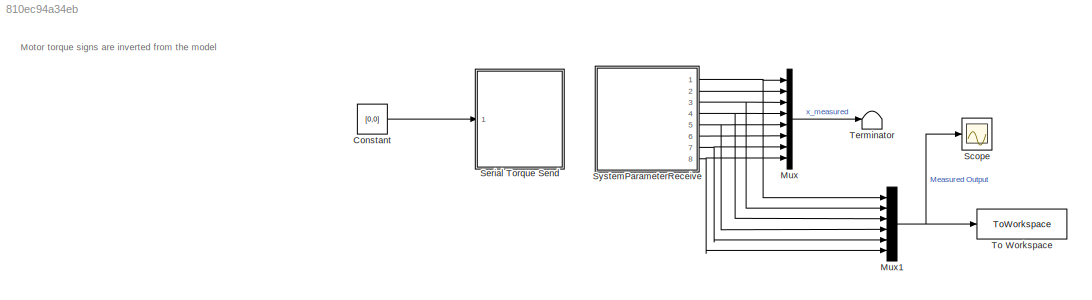
MODEL slx_810ec94a34eb
KIND model
CONFIG AbsTol = auto
CONFIG EnableMultiTasking = off
CONFIG FixedStep = Ts
CONFIG MaxStep = auto
CONFIG MinStep = auto
CONFIG RelTol = 1e-9
CONFIG SampleTimeConstraint = Unconstrained
CONFIG SolverName = FixedStepAuto
CONFIG StartTime = tspan(1)
CONFIG StopTime = tspan(2)
BLOCK [Constant] Constant
  SampleTime = Ts
  Value = [0,0]
BLOCK [Mux] Mux
  DisplayOption = bar
  Inputs = 8
  Ports = [8, 1]
BLOCK [Mux] Mux1
  DisplayOption = bar
  Inputs = 6
  Ports = [6, 1]
BLOCK [Scope] Scope
  Floating = off
  NumInputPorts = 1
  Ports = [1]
  ScopeSpecificationString = Simulink.scopes.TimeScopeBlockCfg('CurrentConfiguration', extmgr.ConfigurationSet(extmgr.Configuration('Core','General UI',true),extmgr.Configuration('Core','Source UI',true),extmgr.Configuration('Sources','WiredSimulink',true),extmgr.Configuration('Visuals','Time Domain',true,'SerializedDisplays',{struct('MinYLimReal','-0.2983','MaxYLimReal','0.05622','YLabelReal','','MinYLimMag','0.00000','MaxYL...<+1519ch>
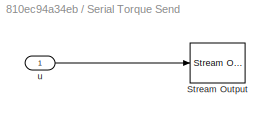
BLOCK [SubSystem] Serial Torque Send
  Ports = [1]
  RequestExecContextInheritance = off
BLOCK [Reference] Serial Torque Send/Stream Output  REF=sldrtlib/Stream Output
  AttributesFormatString = Serial Port [6]
  Ports = [1]
  SourceBlock = sldrtlib/Stream Output
  SourceProductBaseCode = WT
  SourceType = Simulink Desktop Real-Time Stream Output
BLOCK [Inport] Serial Torque Send/u
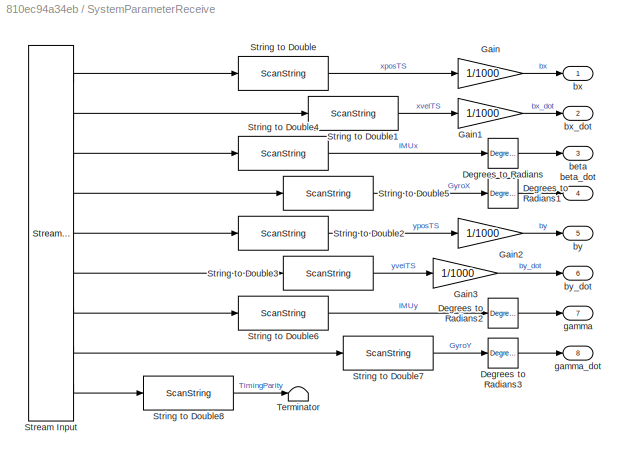
BLOCK [SubSystem] SystemParameterReceive
  Ports = [0, 8]
  RequestExecContextInheritance = off
BLOCK [Reference] SystemParameterReceive/Degrees to Radians  REF=simulink_extras/Transformations/Degrees to
Radians
  Ports = [1, 1]
  SourceBlock = simulink_extras/Transformations/Degrees to\nRadians
  SourceProductBaseCode = SL
  SourceType = DegreesToRadians
BLOCK [Reference] SystemParameterReceive/Degrees to Radians1  REF=simulink_extras/Transformations/Degrees to
Radians
  Ports = [1, 1]
  SourceBlock = simulink_extras/Transformations/Degrees to\nRadians
  SourceProductBaseCode = SL
  SourceType = DegreesToRadians
BLOCK [Reference] SystemParameterReceive/Degrees to Radians2  REF=simulink_extras/Transformations/Degrees to
Radians
  Ports = [1, 1]
  SourceBlock = simulink_extras/Transformations/Degrees to\nRadians
  SourceProductBaseCode = SL
  SourceType = DegreesToRadians
BLOCK [Reference] SystemParameterReceive/Degrees to Radians3  REF=simulink_extras/Transformations/Degrees to
Radians
  Ports = [1, 1]
  SourceBlock = simulink_extras/Transformations/Degrees to\nRadians
  SourceProductBaseCode = SL
  SourceType = DegreesToRadians
BLOCK [Gain] SystemParameterReceive/Gain
  Gain = 1/1000
  OutDataTypeStr = double
BLOCK [Gain] SystemParameterReceive/Gain1
  Gain = 1/1000
  OutDataTypeStr = double
BLOCK [Gain] SystemParameterReceive/Gain2
  Gain = 1/1000
  OutDataTypeStr = double
BLOCK [Gain] SystemParameterReceive/Gain3
  Gain = 1/1000
  OutDataTypeStr = double
BLOCK [Reference] SystemParameterReceive/Stream Input  REF=sldrtlib/Stream Input
  AttributesFormatString = Serial Port [6]
  Ports = [0, 9]
  SourceBlock = sldrtlib/Stream Input
  SourceProductBaseCode = WT
  SourceType = Simulink Desktop Real-Time Stream Input
BLOCK [ScanString] SystemParameterReceive/String to Double
  Format = "%d"
  Ports = [1, 1]
BLOCK [ScanString] SystemParameterReceive/String to Double1
  Format = "%lf"
  Ports = [1, 1]
BLOCK [ScanString] SystemParameterReceive/String to Double2
  Format = "%lf"
  Ports = [1, 1]
BLOCK [ScanString] SystemParameterReceive/String to Double3
  Format = "%lf"
  Ports = [1, 1]
BLOCK [ScanString] SystemParameterReceive/String to Double4
  Format = "%lf"
  Ports = [1, 1]
BLOCK [ScanString] SystemParameterReceive/String to Double5
  Format = "%lf"
  Ports = [1, 1]
BLOCK [ScanString] SystemParameterReceive/String to Double6
  Format = "%lf"
  Ports = [1, 1]
BLOCK [ScanString] SystemParameterReceive/String to Double7
  Format = "%lf"
  Ports = [1, 1]
BLOCK [ScanString] SystemParameterReceive/String to Double8
  Format = "%lf"
  Ports = [1, 1]
BLOCK [Terminator] SystemParameterReceive/Terminator
BLOCK [Outport] SystemParameterReceive/beta
  Port = 3
BLOCK [Outport] SystemParameterReceive/beta_dot
  Port = 4
BLOCK [Outport] SystemParameterReceive/bx
BLOCK [Outport] SystemParameterReceive/bx_dot
  Port = 2
BLOCK [Outport] SystemParameterReceive/by
  Port = 5
BLOCK [Outport] SystemParameterReceive/by_dot
  Port = 6
BLOCK [Outport] SystemParameterReceive/gamma
  Port = 7
BLOCK [Outport] SystemParameterReceive/gamma_dot
  Port = 8
BLOCK [Terminator] Terminator
BLOCK [ToWorkspace] To Workspace
  FixptAsFi = on
  MaxDataPoints = inf
  Ports = [1]
  SampleTime = -1
  VariableName = x_meas
ANNOTATION (root): Motor torque signs are inverted from the model
LINE Constant:1 -> Serial Torque Send:1
NET Mux1:1 -> Scope:1, To Workspace:1
LINE Mux:1 -> Terminator:1
LINE Serial Torque Send/u:1 -> Serial Torque Send/Stream Output:1
LINE SystemParameterReceive/Degrees to Radians1:1 -> SystemParameterReceive/beta_dot:1
LINE SystemParameterReceive/Degrees to Radians2:1 -> SystemParameterReceive/gamma:1
LINE SystemParameterReceive/Degrees to Radians3:1 -> SystemParameterReceive/gamma_dot:1
LINE SystemParameterReceive/Degrees to Radians:1 -> SystemParameterReceive/beta:1
LINE SystemParameterReceive/Gain1:1 -> SystemParameterReceive/bx_dot:1
LINE SystemParameterReceive/Gain2:1 -> SystemParameterReceive/by:1
LINE SystemParameterReceive/Gain3:1 -> SystemParameterReceive/by_dot:1
LINE SystemParameterReceive/Gain:1 -> SystemParameterReceive/bx:1
LINE SystemParameterReceive/Stream Input:1 -> SystemParameterReceive/String to Double:1
LINE SystemParameterReceive/Stream Input:2 -> SystemParameterReceive/String to Double1:1
LINE SystemParameterReceive/Stream Input:3 -> SystemParameterReceive/String to Double4:1
LINE SystemParameterReceive/Stream Input:4 -> SystemParameterReceive/String to Double5:1
LINE SystemParameterReceive/Stream Input:5 -> SystemParameterReceive/String to Double2:1
LINE SystemParameterReceive/Stream Input:6 -> SystemParameterReceive/String to Double3:1
LINE SystemParameterReceive/Stream Input:7 -> SystemParameterReceive/String to Double6:1
LINE SystemParameterReceive/Stream Input:8 -> SystemParameterReceive/String to Double7:1
LINE SystemParameterReceive/Stream Input:9 -> SystemParameterReceive/String to Double8:1
LINE SystemParameterReceive/String to Double1:1 -> SystemParameterReceive/Gain1:1
LINE SystemParameterReceive/String to Double2:1 -> SystemParameterReceive/Gain2:1
LINE SystemParameterReceive/String to Double3:1 -> SystemParameterReceive/Gain3:1
LINE SystemParameterReceive/String to Double4:1 -> SystemParameterReceive/Degrees to Radians:1
LINE SystemParameterReceive/String to Double5:1 -> SystemParameterReceive/Degrees to Radians1:1
LINE SystemParameterReceive/String to Double6:1 -> SystemParameterReceive/Degrees to Radians2:1
LINE SystemParameterReceive/String to Double7:1 -> SystemParameterReceive/Degrees to Radians3:1
LINE SystemParameterReceive/String to Double8:1 -> SystemParameterReceive/Terminator:1
LINE SystemParameterReceive/String to Double:1 -> SystemParameterReceive/Gain:1
NET SystemParameterReceive:1 -> Mux1:1, Mux:1
LINE SystemParameterReceive:2 -> Mux:2
NET SystemParameterReceive:3 -> Mux1:2, Mux:3
NET SystemParameterReceive:4 -> Mux1:3, Mux:4
NET SystemParameterReceive:5 -> Mux1:4, Mux:5
LINE SystemParameterReceive:6 -> Mux:6
NET SystemParameterReceive:7 -> Mux1:5, Mux:7
NET SystemParameterReceive:8 -> Mux1:6, Mux:8
note: NET lines group one-source signal fan-out (src -> all destinations, sorted); 1:1 wires keep LINE
